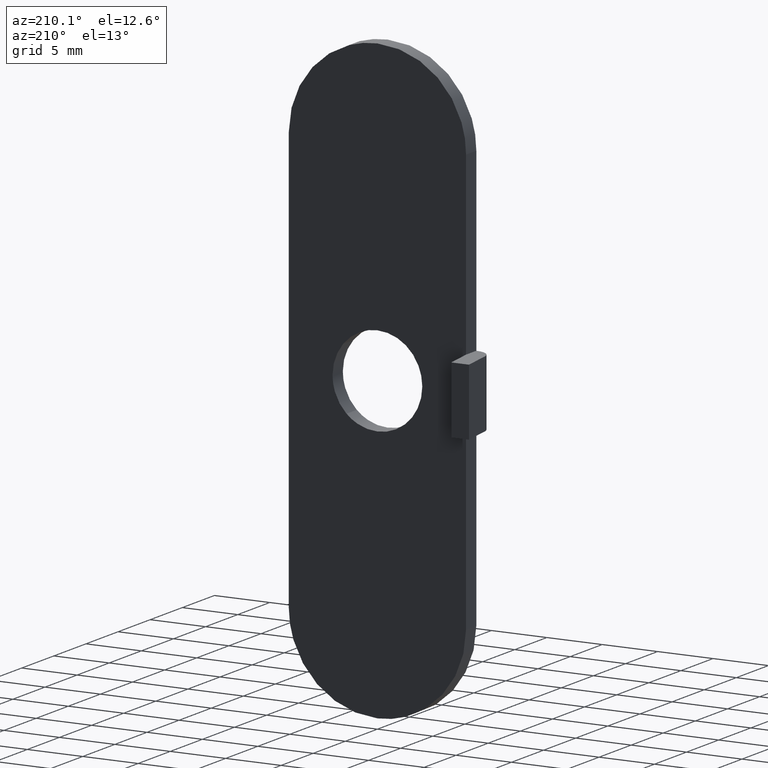
[diagram: clean part render]
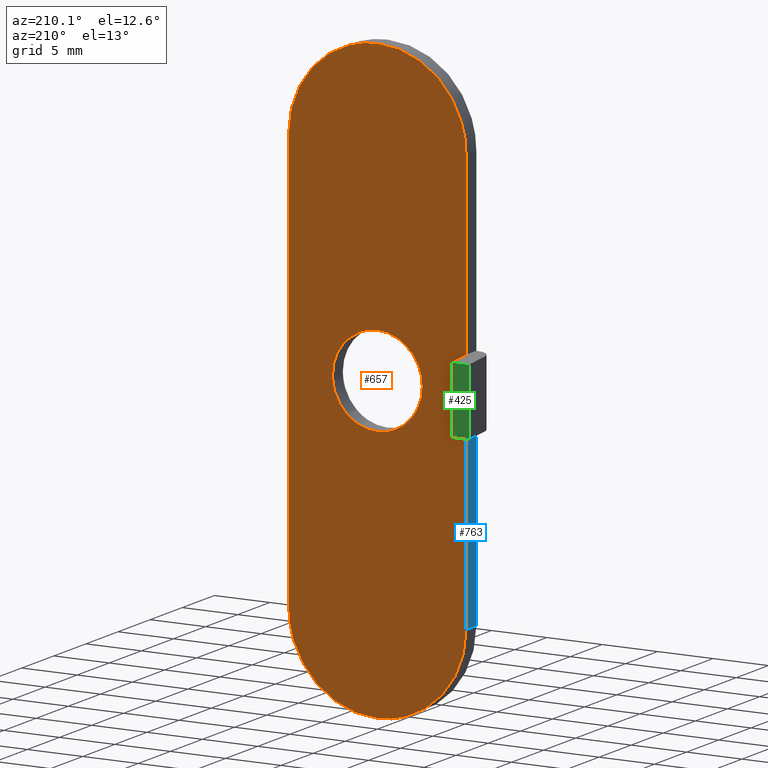
[diagram: same view with three faces highlighted in distinct colors, each labeled with its STEP entity id]
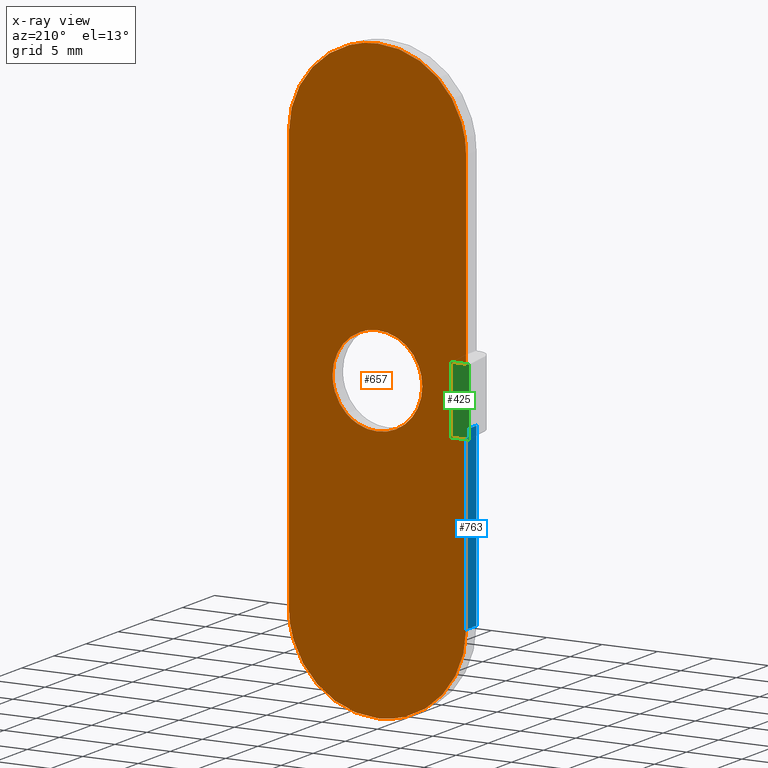
[diagram: x-ray of the same camera — body ghosted, the three highlighted faces saturated]
A machine part, auxiliary view with three faces highlighted in distinct colors.
The next image is the same camera in x-ray (body ghosted, the three faces saturated) — at least one of them is partly hidden behind the body in this view.
Their STEP definitions:

[orange] entity #657 — the highlighted face is a freeform B-spline surface patch.
#128=CARTESIAN_POINT('',(2.787835919395448,-3.816392E-017,-2.937766151292380));
#129=VERTEX_POINT('',#128);
#135=CARTESIAN_POINT('',(0.0,0.0,-4.050000000000000));
#136=VERTEX_POINT('',#135);
#137=CARTESIAN_POINT('',(0.0,0.0,-4.050000000000000));
#138=CARTESIAN_POINT('',(0.240220417416853,-3.288483E-018,-4.050016184962010));
#139=CARTESIAN_POINT('',(0.768710072565096,-1.052321E-017,-4.002872189160777));
#140=CARTESIAN_POINT('',(1.448842863436156,-1.983385E-017,-3.803827950127444));
#141=CARTESIAN_POINT('',(2.154643793244180,-2.949587E-017,-3.457007878002749));
#142=CARTESIAN_POINT('',(2.555545794519778,-3.498399E-017,-3.158300278042939));
#143=CARTESIAN_POINT('',(2.787835919395448,-3.816392E-017,-2.937766151292380));
#144=B_SPLINE_CURVE_WITH_KNOTS('',3,(#137,#138,#139,#140,#141,#142,#143),.UNSPECIFIED.,.F.,.U.,(4,1,1,1,4),(0.000000013875587,0.720667942032535,1.585462012393952,2.113960480181659,3.074851748761453),.UNSPECIFIED.);
#145=EDGE_CURVE('',#136,#129,#144,.T.);
#147=CARTESIAN_POINT('',(-4.049999999999974,0.0,-0.000000458331463));
#148=VERTEX_POINT('',#147);
#149=CARTESIAN_POINT('',(-4.049999999999974,0.0,-0.000000458331463));
#150=CARTESIAN_POINT('',(-4.050201210590498,0.0,-0.414195210118378));
#151=CARTESIAN_POINT('',(-3.937173954854492,0.0,-1.143030933931603));
#152=CARTESIAN_POINT('',(-3.560234567187769,0.0,-1.979403110597706));
#153=CARTESIAN_POINT('',(-3.143165499961528,0.0,-2.579282977979685));
#154=CARTESIAN_POINT('',(-2.661637304370337,0.0,-3.085117777128934));
#155=CARTESIAN_POINT('',(-2.078568683836292,0.0,-3.501118182854742));
#156=CARTESIAN_POINT('',(-1.432818437965541,0.0,-3.806521129865583));
#157=CARTESIAN_POINT('',(-0.762065598154865,0.0,-4.001024033879598));
#158=CARTESIAN_POINT('',(-0.265070882309666,0.0,-4.050037229062436));
#159=CARTESIAN_POINT('',(0.0,0.0,-4.050000000000000));
#160=B_SPLINE_CURVE_WITH_KNOTS('',3,(#149,#150,#151,#152,#153,#154,#155,#156,#157,#158,#159),.UNSPECIFIED.,.F.,.U.,(4,1,1,1,1,1,1,1,4),(0.000000055387317,1.242531855871150,2.186866573110421,2.733573998402191,3.429381440726923,4.274308491726776,4.870726292973097,5.566556277256678,6.361764782321302),.UNSPECIFIED.);
#161=EDGE_CURVE('',#148,#136,#160,.T.);
#163=CARTESIAN_POINT('',(0.0,0.0,4.050000000000000));
#164=VERTEX_POINT('',#163);
#165=CARTESIAN_POINT('',(0.0,0.0,4.050000000000000));
#166=CARTESIAN_POINT('',(-0.381054484313349,0.0,4.050140602619686));
#167=CARTESIAN_POINT('',(-1.010515882282831,0.0,3.960478360670185));
#168=CARTESIAN_POINT('',(-1.800263474168595,0.0,3.650198816271311));
#169=CARTESIAN_POINT('',(-2.453598175635485,0.0,3.253170430365298));
#170=CARTESIAN_POINT('',(-3.046438682187677,0.0,2.715894467325104));
#171=CARTESIAN_POINT('',(-3.501115867815219,0.0,2.078566816770383));
#172=CARTESIAN_POINT('',(-3.827842104405859,0.0,1.387769674100270));
#173=CARTESIAN_POINT('',(-4.010294287966048,0.0,0.712385562720852));
#174=CARTESIAN_POINT('',(-4.050008687073340,0.0,0.215367743600465));
#175=CARTESIAN_POINT('',(-4.049999999999974,0.0,-0.000000458331463));
#176=B_SPLINE_CURVE_WITH_KNOTS('',3,(#165,#166,#167,#168,#169,#170,#171,#172,#173,#174,#175),.UNSPECIFIED.,.F.,.U.,(4,1,1,1,1,1,1,1,4),(0.000000055227183,1.143122650493126,1.888650764688554,2.534773102149365,3.429381718679102,4.274308838590464,4.870726688445481,5.715652830963844,6.361765298970928),.UNSPECIFIED.);
#177=EDGE_CURVE('',#164,#148,#176,.T.);
#179=CARTESIAN_POINT('',(3.092400468792818,-3.904214E-017,2.615255294583833));
#180=VERTEX_POINT('',#179);
#181=CARTESIAN_POINT('',(3.092400468792818,-3.904214E-017,2.615255294583833));
#182=CARTESIAN_POINT('',(2.914918407133498,-3.680139E-017,2.825179600935564));
#183=CARTESIAN_POINT('',(2.530233861974607,-3.194468E-017,3.195875660060409));
#184=CARTESIAN_POINT('',(1.925845666971410,-2.431416E-017,3.583393025228045));
#185=CARTESIAN_POINT('',(1.284921207924465,-1.622237E-017,3.859869496647573));
#186=CARTESIAN_POINT('',(0.659749133948133,-8.329457E-018,4.015747611664701));
#187=CARTESIAN_POINT('',(0.201587019214080,-2.545074E-018,4.050004308013179));
#188=CARTESIAN_POINT('',(0.0,0.0,4.050000000000000));
#189=B_SPLINE_CURVE_WITH_KNOTS('',3,(#181,#182,#183,#184,#185,#186,#187,#188),.UNSPECIFIED.,.F.,.U.,(4,1,1,1,1,4),(0.000000015929191,0.824688244593100,1.594410479268914,2.144189492079690,2.913905276473439,3.518673681326092),.UNSPECIFIED.);
#190=EDGE_CURVE('',#180,#164,#189,.T.);
#226=CARTESIAN_POINT('',(4.049999999999973,0.0,0.000000458331472));
#227=VERTEX_POINT('',#226);
#228=CARTESIAN_POINT('',(4.049999999999973,0.0,0.000000458331472));
#229=CARTESIAN_POINT('',(4.050013335170339,-3.757967E-018,0.251729535548440));
#230=CARTESIAN_POINT('',(3.997412479908575,-1.215826E-017,0.814427069484117));
#231=CARTESIAN_POINT('',(3.714040923694002,-2.575719E-017,1.725357046290256));
#232=CARTESIAN_POINT('',(3.341123608561907,-3.465480E-017,2.321367472700882));
#233=CARTESIAN_POINT('',(3.092400468792818,-3.904214E-017,2.615255294583833));
#234=B_SPLINE_CURVE_WITH_KNOTS('',3,(#228,#229,#230,#231,#232,#233),.UNSPECIFIED.,.F.,.U.,(4,1,1,4),(0.000000012530525,0.755196916126529,1.688082866877942,2.843092339915888),.UNSPECIFIED.);
#235=EDGE_CURVE('',#227,#180,#234,.T.);
#237=CARTESIAN_POINT('',(2.787835919395448,-3.816392E-017,-2.937766151292380));
#238=CARTESIAN_POINT('',(2.961698824237356,-3.602091E-017,-2.772802412003677));
#239=CARTESIAN_POINT('',(3.291390689146556,-3.116492E-017,-2.398999906914581));
#240=CARTESIAN_POINT('',(3.653240560915428,-2.330387E-017,-1.793875618788867));
#241=CARTESIAN_POINT('',(3.961906471046350,-1.289758E-017,-0.992824529655005));
#242=CARTESIAN_POINT('',(4.050164129829514,-5.115335E-018,-0.393765746528907));
#243=CARTESIAN_POINT('',(4.049999999999973,0.0,0.000000458331472));
#244=B_SPLINE_CURVE_WITH_KNOTS('',3,(#237,#238,#239,#240,#241,#242,#243),.UNSPECIFIED.,.F.,.U.,(4,1,1,1,4),(0.000000016472788,0.719011960539485,1.489392776201737,2.105678138751504,3.286913793346115),.UNSPECIFIED.);
#245=EDGE_CURVE('',#129,#227,#244,.T.);
#289=CARTESIAN_POINT('',(-8.0,0.000026249934202,3.0));
#290=VERTEX_POINT('',#289);
#332=CARTESIAN_POINT('',(-8.0,0.000026249934202,-3.0));
#333=VERTEX_POINT('',#332);
#396=CARTESIAN_POINT('',(-8.0,0.000026249934202,3.0));
#397=CARTESIAN_POINT('',(-8.0,0.000026249934202,-3.0));
#398=QUASI_UNIFORM_CURVE('',1,(#396,#397),.UNSPECIFIED.,.F.,.U.);
#399=EDGE_CURVE('',#290,#333,#398,.T.);
#548=CARTESIAN_POINT('',(-8.799199968988896,-1.517883E-015,29.697299895337490));
#549=CARTESIAN_POINT('',(8.799200398142338,-1.517883E-015,29.697299895337490));
#550=CARTESIAN_POINT('',(-8.799199968988896,-1.517883E-015,-29.697301343730359));
#551=CARTESIAN_POINT('',(8.799200398142338,-1.517883E-015,-29.697301343730359));
#552=B_SPLINE_SURFACE_WITH_KNOTS('',1,1,((#548,#550),(#549,#551)),.UNSPECIFIED.,.F.,.F.,.U.,(2,2),(2,2),(0.0,17.598400367131230),(0.0,59.394601239067860),.UNSPECIFIED.);
#553=CARTESIAN_POINT('',(8.0,0.0,19.0));
#554=VERTEX_POINT('',#553);
#555=CARTESIAN_POINT('',(8.0,0.0,-19.0));
#556=VERTEX_POINT('',#555);
#557=CARTESIAN_POINT('',(8.0,0.0,19.0));
#558=CARTESIAN_POINT('',(8.0,0.0,-19.0));
#559=QUASI_UNIFORM_CURVE('',1,(#557,#558),.UNSPECIFIED.,.F.,.U.);
#560=EDGE_CURVE('',#554,#556,#559,.T.);
#561=ORIENTED_EDGE('',*,*,#560,.T.);
#562=CARTESIAN_POINT('',(0.000000671420413,0.0,-26.999999999999979));
#563=VERTEX_POINT('',#562);
#564=CARTESIAN_POINT('',(0.000000671420413,0.0,-26.999999999999979));
#565=CARTESIAN_POINT('',(0.409058530334453,0.0,-27.000021492303119));
#566=CARTESIAN_POINT('',(1.128997142312503,0.0,-26.944659344639810));
#567=CARTESIAN_POINT('',(2.218660525744756,0.0,-26.710486490053849));
#568=CARTESIAN_POINT('',(3.145530874310826,0.0,-26.378850669165359));
#569=CARTESIAN_POINT('',(4.095356896828961,0.0,-25.897084302152621));
#570=CARTESIAN_POINT('',(4.883322665121735,0.0,-25.363563250486859));
#571=CARTESIAN_POINT('',(5.646380869981027,0.0,-24.692971783885781));
#572=CARTESIAN_POINT('',(6.414601708059358,0.0,-23.840227268056552));
#573=CARTESIAN_POINT('',(7.107338756405541,0.0,-22.760998469852780));
#574=CARTESIAN_POINT('',(7.575450113111739,0.0,-21.640444240427279));
#575=CARTESIAN_POINT('',(7.908213628331541,0.0,-20.423490316932750));
#576=CARTESIAN_POINT('',(8.000114431770410,0.0,-19.572695766128980));
#577=CARTESIAN_POINT('',(8.0,0.0,-19.0));
#578=B_SPLINE_CURVE_WITH_KNOTS('',3,(#564,#565,#566,#567,#568,#569,#570,#571,#572,#573,#574,#575,#576,#577),.UNSPECIFIED.,.F.,.U.,(4,1,1,1,1,1,1,1,1,1,1,4),(0.000000038011205,1.227172697971893,2.159840542873159,3.337947909478849,4.172435515595490,5.350548260045036,6.185028635192336,7.215843494601299,8.786653071018664,10.013847000659320,10.848336786208170,12.566389948924650),.UNSPECIFIED.);
#579=EDGE_CURVE('',#563,#556,#578,.T.);
#580=ORIENTED_EDGE('',*,*,#579,.F.);
#581=CARTESIAN_POINT('',(-8.0,0.0,-19.0));
#582=VERTEX_POINT('',#581);
#583=CARTESIAN_POINT('',(-8.0,0.0,-19.0));
#584=CARTESIAN_POINT('',(-8.000035223863407,0.0,-19.474505787027748));
#585=CARTESIAN_POINT('',(-7.909521142593536,0.0,-20.488983960037849));
#586=CARTESIAN_POINT('',(-7.542416901466003,0.0,-21.769546784843889));
#587=CARTESIAN_POINT('',(-6.957576740421087,0.0,-23.015974436050140));
#588=CARTESIAN_POINT('',(-6.257007821979242,0.0,-24.050639299313659));
#589=CARTESIAN_POINT('',(-5.308735200877441,0.0,-25.028423026176888));
#590=CARTESIAN_POINT('',(-4.324430926242860,0.0,-25.767841190327420));
#591=CARTESIAN_POINT('',(-3.398362635514022,0.0,-26.262807954450619));
#592=CARTESIAN_POINT('',(-2.422760313678783,0.0,-26.646046299451200));
#593=CARTESIAN_POINT('',(-1.341705875589080,0.0,-26.923897167868589));
#594=CARTESIAN_POINT('',(-0.458145628851911,0.0,-27.000034547355241));
#595=CARTESIAN_POINT('',(0.000000671420413,0.0,-26.999999999999979));
#596=B_SPLINE_CURVE_WITH_KNOTS('',3,(#583,#584,#585,#586,#587,#588,#589,#590,#591,#592,#593,#594,#595),.UNSPECIFIED.,.F.,.U.,(4,1,1,1,1,1,1,1,1,1,4),(0.000000037951718,1.423522324093755,3.043422620387393,3.976088266977515,5.546892700908940,6.774049362718611,8.050335254018872,9.228443648545097,9.915672165121981,11.191955773266610,12.566390705773090),.UNSPECIFIED.);
#597=EDGE_CURVE('',#582,#563,#596,.T.);
#598=ORIENTED_EDGE('',*,*,#597,.F.);
#599=CARTESIAN_POINT('',(-8.0,0.0,-19.0));
#600=CARTESIAN_POINT('',(-8.0,0.000026249934202,-3.0));
#601=QUASI_UNIFORM_CURVE('',1,(#599,#600),.UNSPECIFIED.,.F.,.U.);
#602=EDGE_CURVE('',#582,#333,#601,.T.);
#603=ORIENTED_EDGE('',*,*,#602,.T.);
#604=ORIENTED_EDGE('',*,*,#399,.F.);
#605=CARTESIAN_POINT('',(-8.0,0.0,19.0));
#606=VERTEX_POINT('',#605);
#607=CARTESIAN_POINT('',(-8.0,0.000026249934202,3.0));
#608=CARTESIAN_POINT('',(-8.0,0.0,19.0));
#609=QUASI_UNIFORM_CURVE('',1,(#607,#608),.UNSPECIFIED.,.F.,.U.);
#610=EDGE_CURVE('',#290,#606,#609,.T.);
#611=ORIENTED_EDGE('',*,*,#610,.T.);
#612=CARTESIAN_POINT('',(-0.000000671420413,0.0,26.999999999999979));
#613=VERTEX_POINT('',#612);
#614=CARTESIAN_POINT('',(-0.000000671420413,0.0,26.999999999999979));
#615=CARTESIAN_POINT('',(-0.409058530334453,0.0,27.000021492303119));
#616=CARTESIAN_POINT('',(-1.128997142312503,0.0,26.944659344639810));
#617=CARTESIAN_POINT('',(-2.218660525744756,0.0,26.710486490053849));
#618=CARTESIAN_POINT('',(-3.145530874310826,0.0,26.378850669165359));
#619=CARTESIAN_POINT('',(-4.095356896828961,0.0,25.897084302152621));
#620=CARTESIAN_POINT('',(-4.883322665121735,0.0,25.363563250486859));
#621=CARTESIAN_POINT('',(-5.646380869981027,0.0,24.692971783885781));
#622=CARTESIAN_POINT('',(-6.414601708059358,0.0,23.840227268056552));
#623=CARTESIAN_POINT('',(-7.107338756405541,0.0,22.760998469852780));
#624=CARTESIAN_POINT('',(-7.575450113111739,0.0,21.640444240427279));
#625=CARTESIAN_POINT('',(-7.908213628331541,0.0,20.423490316932750));
#626=CARTESIAN_POINT('',(-8.000114431770410,0.0,19.572695766128980));
#627=CARTESIAN_POINT('',(-8.0,0.0,19.0));
#628=B_SPLINE_CURVE_WITH_KNOTS('',3,(#614,#615,#616,#617,#618,#619,#620,#621,#622,#623,#624,#625,#626,#627),.UNSPECIFIED.,.F.,.U.,(4,1,1,1,1,1,1,1,1,1,1,4),(0.000000038011205,1.227172697971893,2.159840542873159,3.337947909478849,4.172435515595490,5.350548260045036,6.185028635192336,7.215843494601299,8.786653071018664,10.013847000659320,10.848336786208170,12.566389948924650),.UNSPECIFIED.);
#629=EDGE_CURVE('',#613,#606,#628,.T.);
#630=ORIENTED_EDGE('',*,*,#629,.F.);
#631=CARTESIAN_POINT('',(8.0,0.0,19.0));
#632=CARTESIAN_POINT('',(8.000035223863407,0.0,19.474505787027748));
#633=CARTESIAN_POINT('',(7.909521142593536,0.0,20.488983960037849));
#634=CARTESIAN_POINT('',(7.542416901466003,0.0,21.769546784843889));
#635=CARTESIAN_POINT('',(6.957576740421087,0.0,23.015974436050140));
#636=CARTESIAN_POINT('',(6.257007821979242,0.0,24.050639299313659));
#637=CARTESIAN_POINT('',(5.308735200877441,0.0,25.028423026176888));
#638=CARTESIAN_POINT('',(4.324430926242860,0.0,25.767841190327420));
#639=CARTESIAN_POINT('',(3.398362635514022,0.0,26.262807954450619));
#640=CARTESIAN_POINT('',(2.422760313678783,0.0,26.646046299451200));
#641=CARTESIAN_POINT('',(1.341705875589080,0.0,26.923897167868589));
#642=CARTESIAN_POINT('',(0.458145628851911,0.0,27.000034547355241));
#643=CARTESIAN_POINT('',(-0.000000671420413,0.0,26.999999999999979));
#644=B_SPLINE_CURVE_WITH_KNOTS('',3,(#631,#632,#633,#634,#635,#636,#637,#638,#639,#640,#641,#642,#643),.UNSPECIFIED.,.F.,.U.,(4,1,1,1,1,1,1,1,1,1,4),(0.000000037951718,1.423522324093755,3.043422620387393,3.976088266977515,5.546892700908940,6.774049362718611,8.050335254018872,9.228443648545097,9.915672165121981,11.191955773266610,12.566390705773090),.UNSPECIFIED.);
#645=EDGE_CURVE('',#554,#613,#644,.T.);
#646=ORIENTED_EDGE('',*,*,#645,.F.);
#647=EDGE_LOOP('',(#561,#580,#598,#603,#604,#611,#630,#646));
#648=FACE_OUTER_BOUND('',#647,.T.);
#649=ORIENTED_EDGE('',*,*,#177,.T.);
#650=ORIENTED_EDGE('',*,*,#161,.T.);
#651=ORIENTED_EDGE('',*,*,#145,.T.);
#652=ORIENTED_EDGE('',*,*,#245,.T.);
#653=ORIENTED_EDGE('',*,*,#235,.T.);
#654=ORIENTED_EDGE('',*,*,#190,.T.);
#655=EDGE_LOOP('',(#649,#650,#651,#652,#653,#654));
#656=FACE_BOUND('',#655,.T.);
#657=ADVANCED_FACE('',(#648,#656),#552,.T.);

[blue] entity #763 — the highlighted face is a freeform B-spline surface patch.
#332=CARTESIAN_POINT('',(-8.0,0.000026249934202,-3.0));
#333=VERTEX_POINT('',#332);
#339=CARTESIAN_POINT('',(-8.0,-1.600004125000085,-3.0));
#340=VERTEX_POINT('',#339);
#341=CARTESIAN_POINT('',(-8.0,0.000026249934202,-3.0));
#342=CARTESIAN_POINT('',(-8.0,-1.600004125000085,-3.0));
#343=QUASI_UNIFORM_CURVE('',1,(#341,#342),.UNSPECIFIED.,.F.,.U.);
#344=EDGE_CURVE('',#333,#340,#343,.T.);
#495=CARTESIAN_POINT('',(-8.0,-1.599990999999965,-19.0));
#496=VERTEX_POINT('',#495);
#497=CARTESIAN_POINT('',(-8.0,-1.599990999999965,-19.0));
#498=CARTESIAN_POINT('',(-8.0,-1.600004125000085,-3.0));
#499=QUASI_UNIFORM_CURVE('',1,(#497,#498),.UNSPECIFIED.,.F.,.U.);
#500=EDGE_CURVE('',#496,#340,#499,.T.);
#581=CARTESIAN_POINT('',(-8.0,0.0,-19.0));
#582=VERTEX_POINT('',#581);
#599=CARTESIAN_POINT('',(-8.0,0.0,-19.0));
#600=CARTESIAN_POINT('',(-8.0,0.000026249934202,-3.0));
#601=QUASI_UNIFORM_CURVE('',1,(#599,#600),.UNSPECIFIED.,.F.,.U.);
#602=EDGE_CURVE('',#582,#333,#601,.T.);
#725=CARTESIAN_POINT('',(-8.0,0.0,-19.0));
#726=CARTESIAN_POINT('',(-8.0,-1.599990999999965,-19.0));
#727=QUASI_UNIFORM_CURVE('',1,(#725,#726),.UNSPECIFIED.,.F.,.U.);
#728=EDGE_CURVE('',#582,#496,#727,.T.);
#752=CARTESIAN_POINT('',(-8.0,-1.679925594067063,-2.200800031011105));
#753=CARTESIAN_POINT('',(-8.0,-1.679925594067063,-19.799200398142339));
#754=CARTESIAN_POINT('',(-8.0,0.079947804833497,-2.200800031011105));
#755=CARTESIAN_POINT('',(-8.0,0.079947804833497,-19.799200398142339));
#756=B_SPLINE_SURFACE_WITH_KNOTS('',1,1,((#752,#754),(#753,#755)),.UNSPECIFIED.,.F.,.F.,.U.,(2,2),(2,2),(0.0,17.598400367131230),(0.041708358416706,0.958291686286777),.UNSPECIFIED.);
#757=ORIENTED_EDGE('',*,*,#344,.F.);
#758=ORIENTED_EDGE('',*,*,#602,.F.);
#759=ORIENTED_EDGE('',*,*,#728,.T.);
#760=ORIENTED_EDGE('',*,*,#500,.T.);
#761=EDGE_LOOP('',(#757,#758,#759,#760));
#762=FACE_OUTER_BOUND('',#761,.T.);
#763=ADVANCED_FACE('',(#762),#756,.F.);

[green] entity #425 — the highlighted face is a freeform B-spline surface patch.
#268=CARTESIAN_POINT('',(-10.0,3.0,3.0));
#269=VERTEX_POINT('',#268);
#296=CARTESIAN_POINT('',(-8.400002000000001,3.0,3.0));
#297=VERTEX_POINT('',#296);
#303=CARTESIAN_POINT('',(-10.0,3.0,3.0));
#304=CARTESIAN_POINT('',(-8.400002000000001,3.0,3.0));
#305=QUASI_UNIFORM_CURVE('',1,(#303,#304),.UNSPECIFIED.,.F.,.U.);
#306=EDGE_CURVE('',#269,#297,#305,.T.);
#318=CARTESIAN_POINT('',(-10.0,3.0,-3.0));
#319=VERTEX_POINT('',#318);
#325=CARTESIAN_POINT('',(-8.400002000000001,3.0,-3.0));
#326=VERTEX_POINT('',#325);
#327=CARTESIAN_POINT('',(-10.0,3.0,-3.0));
#328=CARTESIAN_POINT('',(-8.400002000000001,3.0,-3.0));
#329=QUASI_UNIFORM_CURVE('',1,(#327,#328),.UNSPECIFIED.,.F.,.U.);
#330=EDGE_CURVE('',#319,#326,#329,.T.);
#402=CARTESIAN_POINT('',(-8.400002000000001,3.0,-3.0));
#403=CARTESIAN_POINT('',(-8.400002000000001,3.0,3.0));
#404=QUASI_UNIFORM_CURVE('',1,(#402,#403),.UNSPECIFIED.,.F.,.U.);
#405=EDGE_CURVE('',#326,#297,#404,.T.);
#410=CARTESIAN_POINT('',(-10.079919919864160,3.0,3.299699988370836));
#411=CARTESIAN_POINT('',(-10.079919919864160,3.0,-3.299700149303377));
#412=CARTESIAN_POINT('',(-8.320081579457451,3.0,3.299699988370836));
#413=CARTESIAN_POINT('',(-8.320081579457451,3.0,-3.299700149303377));
#414=B_SPLINE_SURFACE_WITH_KNOTS('',1,1,((#410,#412),(#411,#413)),.UNSPECIFIED.,.F.,.F.,.U.,(2,2),(2,2),(0.0,6.599400137674213),(0.041708323039487,0.958291937730834),.UNSPECIFIED.);
#415=ORIENTED_EDGE('',*,*,#306,.T.);
#416=ORIENTED_EDGE('',*,*,#405,.F.);
#417=ORIENTED_EDGE('',*,*,#330,.F.);
#418=CARTESIAN_POINT('',(-10.0,3.0,-3.0));
#419=CARTESIAN_POINT('',(-10.0,3.0,3.0));
#420=QUASI_UNIFORM_CURVE('',1,(#418,#419),.UNSPECIFIED.,.F.,.U.);
#421=EDGE_CURVE('',#319,#269,#420,.T.);
#422=ORIENTED_EDGE('',*,*,#421,.T.);
#423=EDGE_LOOP('',(#415,#416,#417,#422));
#424=FACE_OUTER_BOUND('',#423,.T.);
#425=ADVANCED_FACE('',(#424),#414,.F.);